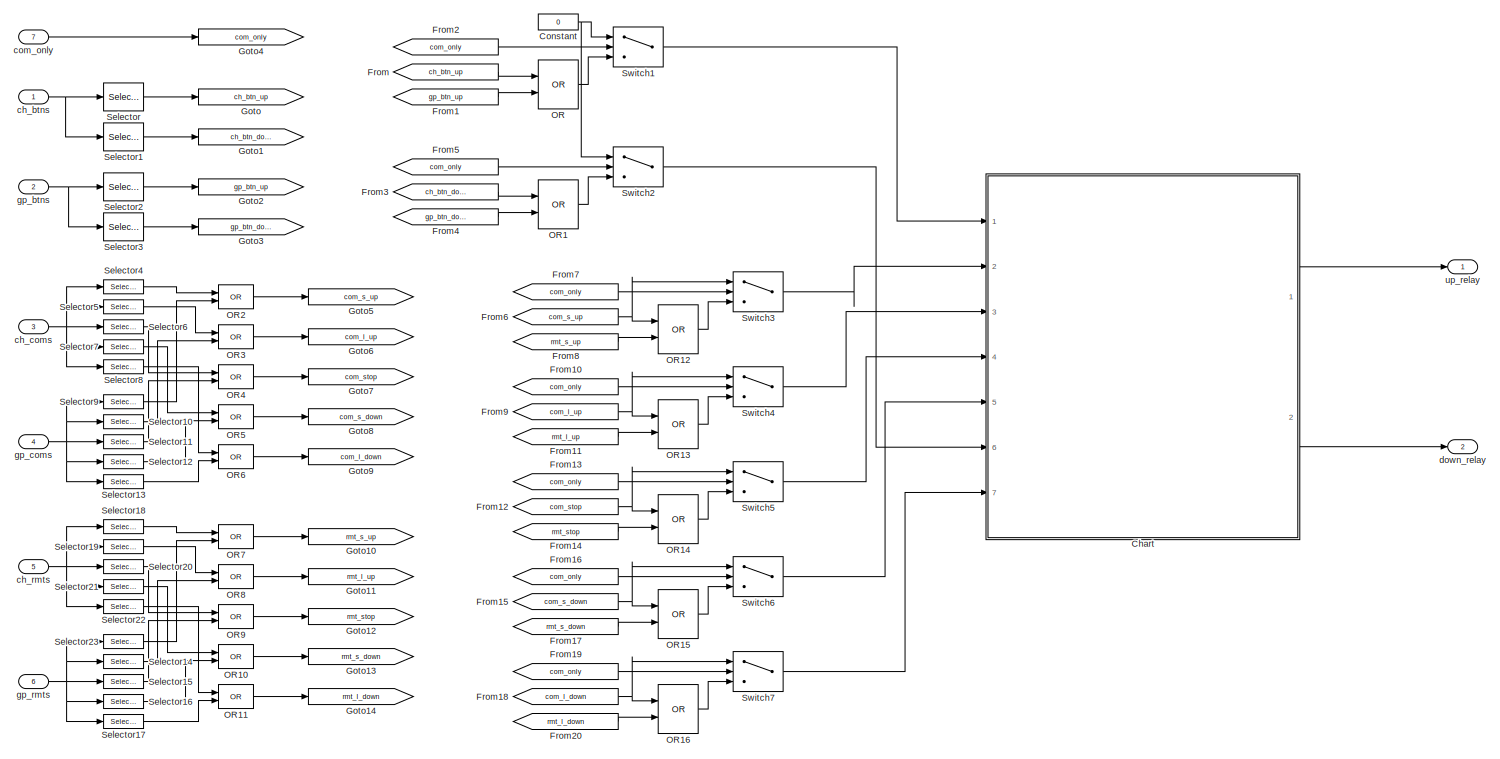
[diagram: root canvas - part 1/1, most of the canvas]
MODEL slx_78d8e8c040b7
KIND model
WORKSPACE source: mxarray member
WORKSPACE debounce_cnt: Simulink.Parameter (value not decoded)
WORKSPACE long_cnt: Simulink.Parameter (value not decoded)
WORKSPACE longpress_cnt: Simulink.Parameter (value not decoded)
WORKSPACE short_cnt: Simulink.Parameter (value not decoded)
WORKSPACE transfer_cnt: Simulink.Parameter (value not decoded)
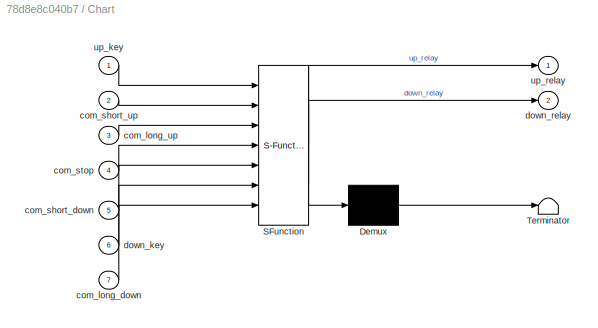
BLOCK [SubSystem] Chart
  ErrorFcn = Stateflow.Translate.translate
  PermitHierarchicalResolution = ExplicitOnly
  PortSchema = {"entries":[{"content":{"sides":[{"content":{"connectorIds":["In1","In6","In2","In3","In4","In5","In7"]},"type":"ConnectorPlacement.EquallySpacedRectSide","uuid":"4c20fa99-1adf-4f22-ae93-c6186f058e35"},{"content":{"connectorIds":["Out1","Out2"],"side":"RIGHT"},"type":"ConnectorPlacement.EquallySpacedRectSide","uuid":"7e4b4d75-813d-4fac-a5e7-b1188569f7b1"},{"content":{"connectorIds":[],"side":"TOP"...<+283ch>
  Ports = [7, 2]
  RequestExecContextInheritance = off
  SFBlockType = Chart
  TreatAsGroupedWhenPropagatingVariantConditions = off
BLOCK [Demux] Chart/ Demux 
  Outputs = 1
  Ports = [1, 1]
BLOCK [S-Function] Chart/ SFunction 
  EnableBusSupport = on
  FunctionName = sf_sfun
  Parameters = debounce_cnt,long_cnt,longpress_cnt,short_cnt,transfer_cnt
  PortCounts = [7 3]
  Ports = [7, 3]
  SFcnIsStateOwnerBlock = off
  SFunctionDeploymentMode = off
  Tag = Stateflow S-Function 3
BLOCK [Terminator] Chart/ Terminator 
BLOCK [Inport] Chart/com_long_down
  Port = 7
BLOCK [Inport] Chart/com_long_up
  Port = 3
BLOCK [Inport] Chart/com_short_down
  Port = 5
BLOCK [Inport] Chart/com_short_up
  Port = 2
BLOCK [Inport] Chart/com_stop
  Port = 4
BLOCK [Inport] Chart/down_key
  Port = 6
BLOCK [Outport] Chart/down_relay
  Port = 2
BLOCK [Inport] Chart/up_key
BLOCK [Outport] Chart/up_relay
BLOCK [Constant] Constant
  OutDataTypeStr = int16
  Value = 0
BLOCK [From] From
  GotoTag = ch_btn_up
BLOCK [From] From1
  GotoTag = gp_btn_up
BLOCK [From] From10
  GotoTag = com_only
BLOCK [From] From11
  GotoTag = rmt_l_up
BLOCK [From] From12
  GotoTag = com_stop
BLOCK [From] From13
  GotoTag = com_only
BLOCK [From] From14
  GotoTag = rmt_stop
BLOCK [From] From15
  GotoTag = com_s_down
BLOCK [From] From16
  GotoTag = com_only
BLOCK [From] From17
  GotoTag = rmt_s_down
BLOCK [From] From18
  GotoTag = com_l_down
BLOCK [From] From19
  GotoTag = com_only
BLOCK [From] From2
  GotoTag = com_only
BLOCK [From] From20
  GotoTag = rmt_l_down
BLOCK [From] From3
  GotoTag = ch_btn_down
BLOCK [From] From4
  GotoTag = gp_btn_down
BLOCK [From] From5
  GotoTag = com_only
BLOCK [From] From6
  GotoTag = com_s_up
BLOCK [From] From7
  GotoTag = com_only
BLOCK [From] From8
  GotoTag = rmt_s_up
BLOCK [From] From9
  GotoTag = com_l_up
BLOCK [Goto] Goto
  GotoTag = ch_btn_up
BLOCK [Goto] Goto1
  GotoTag = ch_btn_down
BLOCK [Goto] Goto10
  GotoTag = rmt_s_up
BLOCK [Goto] Goto11
  GotoTag = rmt_l_up
BLOCK [Goto] Goto12
  GotoTag = rmt_stop
BLOCK [Goto] Goto13
  GotoTag = rmt_s_down
BLOCK [Goto] Goto14
  GotoTag = rmt_l_down
BLOCK [Goto] Goto2
  GotoTag = gp_btn_up
BLOCK [Goto] Goto3
  GotoTag = gp_btn_down
BLOCK [Goto] Goto4
  GotoTag = com_only
BLOCK [Goto] Goto5
  GotoTag = com_s_up
BLOCK [Goto] Goto6
  GotoTag = com_l_up
BLOCK [Goto] Goto7
  GotoTag = com_stop
BLOCK [Goto] Goto8
  GotoTag = com_s_down
BLOCK [Goto] Goto9
  GotoTag = com_l_down
BLOCK [Logic] OR
  AllPortsSameDT = off
  Operator = OR
  Ports = [2, 1]
BLOCK [Logic] OR1
  AllPortsSameDT = off
  Operator = OR
  Ports = [2, 1]
BLOCK [Logic] OR10
  AllPortsSameDT = off
  Operator = OR
  Ports = [2, 1]
BLOCK [Logic] OR11
  AllPortsSameDT = off
  Operator = OR
  Ports = [2, 1]
BLOCK [Logic] OR12
  AllPortsSameDT = off
  Operator = OR
  Ports = [2, 1]
BLOCK [Logic] OR13
  AllPortsSameDT = off
  Operator = OR
  Ports = [2, 1]
BLOCK [Logic] OR14
  AllPortsSameDT = off
  Operator = OR
  Ports = [2, 1]
BLOCK [Logic] OR15
  AllPortsSameDT = off
  Operator = OR
  Ports = [2, 1]
BLOCK [Logic] OR16
  AllPortsSameDT = off
  Operator = OR
  Ports = [2, 1]
BLOCK [Logic] OR2
  AllPortsSameDT = off
  Operator = OR
  Ports = [2, 1]
BLOCK [Logic] OR3
  AllPortsSameDT = off
  Operator = OR
  Ports = [2, 1]
BLOCK [Logic] OR4
  AllPortsSameDT = off
  Operator = OR
  Ports = [2, 1]
BLOCK [Logic] OR5
  AllPortsSameDT = off
  Operator = OR
  Ports = [2, 1]
BLOCK [Logic] OR6
  AllPortsSameDT = off
  Operator = OR
  Ports = [2, 1]
BLOCK [Logic] OR7
  AllPortsSameDT = off
  Operator = OR
  Ports = [2, 1]
BLOCK [Logic] OR8
  AllPortsSameDT = off
  Operator = OR
  Ports = [2, 1]
BLOCK [Logic] OR9
  AllPortsSameDT = off
  Operator = OR
  Ports = [2, 1]
BLOCK [Selector] Selector
  IndexMode = Zero-based
  IndexOptions = Index vector (dialog)
  Indices = [0]
  InputPortWidth = 2
  OutputSizes = 1
  Ports = [1, 1]
BLOCK [Selector] Selector1
  IndexMode = Zero-based
  IndexOptions = Index vector (dialog)
  Indices = [1]
  InputPortWidth = 2
  OutputSizes = 1
  Ports = [1, 1]
BLOCK [Selector] Selector10
  IndexMode = Zero-based
  IndexOptions = Index vector (dialog)
  Indices = [1]
  InputPortWidth = 5
  OutputSizes = 1
  Ports = [1, 1]
BLOCK [Selector] Selector11
  IndexMode = Zero-based
  IndexOptions = Index vector (dialog)
  Indices = [2]
  InputPortWidth = 5
  OutputSizes = 1
  Ports = [1, 1]
BLOCK [Selector] Selector12
  IndexMode = Zero-based
  IndexOptions = Index vector (dialog)
  Indices = [3]
  InputPortWidth = 5
  OutputSizes = 1
  Ports = [1, 1]
BLOCK [Selector] Selector13
  IndexMode = Zero-based
  IndexOptions = Index vector (dialog)
  Indices = [4]
  InputPortWidth = 5
  OutputSizes = 1
  Ports = [1, 1]
BLOCK [Selector] Selector14
  IndexMode = Zero-based
  IndexOptions = Index vector (dialog)
  Indices = [1]
  InputPortWidth = 5
  OutputSizes = 1
  Ports = [1, 1]
BLOCK [Selector] Selector15
  IndexMode = Zero-based
  IndexOptions = Index vector (dialog)
  Indices = [2]
  InputPortWidth = 5
  OutputSizes = 1
  Ports = [1, 1]
BLOCK [Selector] Selector16
  IndexMode = Zero-based
  IndexOptions = Index vector (dialog)
  Indices = [3]
  InputPortWidth = 5
  OutputSizes = 1
  Ports = [1, 1]
BLOCK [Selector] Selector17
  IndexMode = Zero-based
  IndexOptions = Index vector (dialog)
  Indices = [4]
  InputPortWidth = 5
  OutputSizes = 1
  Ports = [1, 1]
BLOCK [Selector] Selector18
  IndexMode = Zero-based
  IndexOptions = Index vector (dialog)
  Indices = [0]
  InputPortWidth = 5
  OutputSizes = 1
  Ports = [1, 1]
BLOCK [Selector] Selector19
  IndexMode = Zero-based
  IndexOptions = Index vector (dialog)
  Indices = [1]
  InputPortWidth = 5
  OutputSizes = 1
  Ports = [1, 1]
BLOCK [Selector] Selector2
  IndexMode = Zero-based
  IndexOptions = Index vector (dialog)
  Indices = [0]
  InputPortWidth = 2
  OutputSizes = 1
  Ports = [1, 1]
BLOCK [Selector] Selector20
  IndexMode = Zero-based
  IndexOptions = Index vector (dialog)
  Indices = [2]
  InputPortWidth = 5
  OutputSizes = 1
  Ports = [1, 1]
BLOCK [Selector] Selector21
  IndexMode = Zero-based
  IndexOptions = Index vector (dialog)
  Indices = [3]
  InputPortWidth = 5
  OutputSizes = 1
  Ports = [1, 1]
BLOCK [Selector] Selector22
  IndexMode = Zero-based
  IndexOptions = Index vector (dialog)
  Indices = [4]
  InputPortWidth = 5
  OutputSizes = 1
  Ports = [1, 1]
BLOCK [Selector] Selector23
  IndexMode = Zero-based
  IndexOptions = Index vector (dialog)
  Indices = [0]
  InputPortWidth = 5
  OutputSizes = 1
  Ports = [1, 1]
BLOCK [Selector] Selector3
  IndexMode = Zero-based
  IndexOptions = Index vector (dialog)
  Indices = [1]
  InputPortWidth = 2
  OutputSizes = 1
  Ports = [1, 1]
BLOCK [Selector] Selector4
  IndexMode = Zero-based
  IndexOptions = Index vector (dialog)
  Indices = [0]
  InputPortWidth = 5
  OutputSizes = 1
  Ports = [1, 1]
BLOCK [Selector] Selector5
  IndexMode = Zero-based
  IndexOptions = Index vector (dialog)
  Indices = [1]
  InputPortWidth = 5
  OutputSizes = 1
  Ports = [1, 1]
BLOCK [Selector] Selector6
  IndexMode = Zero-based
  IndexOptions = Index vector (dialog)
  Indices = [2]
  InputPortWidth = 5
  OutputSizes = 1
  Ports = [1, 1]
BLOCK [Selector] Selector7
  IndexMode = Zero-based
  IndexOptions = Index vector (dialog)
  Indices = [3]
  InputPortWidth = 5
  OutputSizes = 1
  Ports = [1, 1]
BLOCK [Selector] Selector8
  IndexMode = Zero-based
  IndexOptions = Index vector (dialog)
  Indices = [4]
  InputPortWidth = 5
  OutputSizes = 1
  Ports = [1, 1]
BLOCK [Selector] Selector9
  IndexMode = Zero-based
  IndexOptions = Index vector (dialog)
  Indices = [0]
  InputPortWidth = 5
  OutputSizes = 1
  Ports = [1, 1]
BLOCK [Switch] Switch1
  Criteria = u2 ~= 0
  InputSameDT = off
  SaturateOnIntegerOverflow = off
BLOCK [Switch] Switch2
  Criteria = u2 ~= 0
  InputSameDT = off
  SaturateOnIntegerOverflow = off
BLOCK [Switch] Switch3
  Criteria = u2 ~= 0
  InputSameDT = off
  SaturateOnIntegerOverflow = off
BLOCK [Switch] Switch4
  Criteria = u2 ~= 0
  InputSameDT = off
  SaturateOnIntegerOverflow = off
BLOCK [Switch] Switch5
  Criteria = u2 ~= 0
  InputSameDT = off
  SaturateOnIntegerOverflow = off
BLOCK [Switch] Switch6
  Criteria = u2 ~= 0
  InputSameDT = off
  SaturateOnIntegerOverflow = off
BLOCK [Switch] Switch7
  Criteria = u2 ~= 0
  InputSameDT = off
  SaturateOnIntegerOverflow = off
BLOCK [Inport] ch_btns
  OutDataTypeStr = int16
  OutMax = 1
  OutMin = 0
  PortDimensions = 2
  SignalType = real
BLOCK [Inport] ch_coms
  OutDataTypeStr = int16
  OutMax = 1
  OutMin = 0
  Port = 3
  PortDimensions = 5
  SignalType = real
BLOCK [Inport] ch_rmts
  OutDataTypeStr = int16
  OutMax = 1
  OutMin = 0
  Port = 5
  PortDimensions = 5
  SignalType = real
BLOCK [Inport] com_only
  OutDataTypeStr = int16
  OutMax = 1
  OutMin = 0
  Port = 7
  PortDimensions = 1
  SignalType = real
BLOCK [Outport] down_relay
  OutDataTypeStr = int16
  OutMax = 1
  OutMin = 0
  Port = 2
  PortDimensions = 1
  SignalType = real
BLOCK [Inport] gp_btns
  OutDataTypeStr = int16
  OutMax = 1
  OutMin = 0
  Port = 2
  PortDimensions = 2
  SignalType = real
BLOCK [Inport] gp_coms
  OutDataTypeStr = int16
  OutMax = 1
  OutMin = 0
  Port = 4
  PortDimensions = 5
  SignalType = real
BLOCK [Inport] gp_rmts
  OutDataTypeStr = int16
  OutMax = 1
  OutMin = 0
  Port = 6
  PortDimensions = 5
  SignalType = real
BLOCK [Outport] up_relay
  OutDataTypeStr = int16
  OutMax = 1
  OutMin = 0
  PortDimensions = 1
  SignalType = real
LINE Chart:1 -> up_relay:1
LINE Chart:2 -> down_relay:1
NET Constant:1 -> Switch1:1, Switch2:1
LINE From10:1 -> Switch4:2
LINE From11:1 -> OR13:2
NET From12:1 -> OR14:1, Switch5:1
LINE From13:1 -> Switch5:2
LINE From14:1 -> OR14:2
NET From15:1 -> OR15:1, Switch6:1
LINE From16:1 -> Switch6:2
LINE From17:1 -> OR15:2
NET From18:1 -> OR16:1, Switch7:1
LINE From19:1 -> Switch7:2
LINE From1:1 -> OR:2
LINE From20:1 -> OR16:2
LINE From2:1 -> Switch1:2
LINE From3:1 -> OR1:1
LINE From4:1 -> OR1:2
LINE From5:1 -> Switch2:2
NET From6:1 -> OR12:1, Switch3:1
LINE From7:1 -> Switch3:2
LINE From8:1 -> OR12:2
NET From9:1 -> OR13:1, Switch4:1
LINE From:1 -> OR:1
LINE OR10:1 -> Goto13:1
LINE OR11:1 -> Goto14:1
LINE OR12:1 -> Switch3:3
LINE OR13:1 -> Switch4:3
LINE OR14:1 -> Switch5:3
LINE OR15:1 -> Switch6:3
LINE OR16:1 -> Switch7:3
LINE OR1:1 -> Switch2:3
LINE OR2:1 -> Goto5:1
LINE OR3:1 -> Goto6:1
LINE OR4:1 -> Goto7:1
LINE OR5:1 -> Goto8:1
LINE OR6:1 -> Goto9:1
LINE OR7:1 -> Goto10:1
LINE OR8:1 -> Goto11:1
LINE OR9:1 -> Goto12:1
LINE OR:1 -> Switch1:3
LINE Selector10:1 -> OR3:2
LINE Selector11:1 -> OR4:2
LINE Selector12:1 -> OR5:2
LINE Selector13:1 -> OR6:2
LINE Selector14:1 -> OR8:2
LINE Selector15:1 -> OR9:2
LINE Selector16:1 -> OR10:2
LINE Selector17:1 -> OR11:2
LINE Selector18:1 -> OR7:1
LINE Selector19:1 -> OR8:1
LINE Selector1:1 -> Goto1:1
LINE Selector20:1 -> OR9:1
LINE Selector21:1 -> OR10:1
LINE Selector22:1 -> OR11:1
LINE Selector23:1 -> OR7:2
LINE Selector2:1 -> Goto2:1
LINE Selector3:1 -> Goto3:1
LINE Selector4:1 -> OR2:1
LINE Selector5:1 -> OR3:1
LINE Selector6:1 -> OR4:1
LINE Selector7:1 -> OR5:1
LINE Selector8:1 -> OR6:1
LINE Selector9:1 -> OR2:2
LINE Selector:1 -> Goto:1
LINE Switch1:1 -> Chart:1
LINE Switch2:1 -> Chart:6
LINE Switch3:1 -> Chart:2
LINE Switch4:1 -> Chart:3
LINE Switch5:1 -> Chart:4
LINE Switch6:1 -> Chart:5
LINE Switch7:1 -> Chart:7
NET ch_btns:1 -> Selector1:1, Selector:1
NET ch_coms:1 -> Selector4:1, Selector5:1, Selector6:1, Selector7:1, Selector8:1
NET ch_rmts:1 -> Selector18:1, Selector19:1, Selector20:1, Selector21:1, Selector22:1
LINE com_only:1 -> Goto4:1
NET gp_btns:1 -> Selector2:1, Selector3:1
NET gp_coms:1 -> Selector10:1, Selector11:1, Selector12:1, Selector13:1, Selector9:1
NET gp_rmts:1 -> Selector14:1, Selector15:1, Selector16:1, Selector17:1, Selector23:1
note: NET lines group one-source signal fan-out (src -> all destinations, sorted); 1:1 wires keep LINE
CHART Chart states=26 transitions=40
  STATE_LABEL 'MOTOR_CTRL'
  STATE_LABEL 'COM_CMD'
  STATE_LABEL 'SHORT_DOWN\nen: send(short_down_event,MOTOR)'
  STATE_LABEL 'IDLE'
  STATE_LABEL 'SHORT_UP\nen: send(short_up_event,MOTOR)'
  STATE_LABEL 'LONG_DOWN\nen: send(long_down_event,MOTOR)'
  STATE_LABEL 'LONG_UP\nen: send(long_up_event,MOTOR)'
  STATE_LABEL 'STOP\nen: send(stop_event,MOTOR)'
  STATE_LABEL '[com_short_up==1]'
  STATE_LABEL '[com_short_down==1]'
  STATE_LABEL '[after(short_cnt,tick)]'
  STATE_LABEL '[after(short_cnt,tick)]'
  STATE_LABEL '[com_long_down==1]'
  STATE_LABEL '[after(short_cnt,tick)]'
  STATE_LABEL '[com_stop==1]'
  STATE_LABEL '[after(short_cnt,tick)]'
  STATE_LABEL '[after(short_cnt,tick)]'
  STATE_LABEL '[com_long_up==1]'
  STATE_LABEL 'KEY_CMD'
  STATE_LABEL 'DOWN_KEY_PRESSED'
  STATE_LABEL 'DOWN_CLICK'
  STATE_LABEL 'DOWN_DEBOUNCE'
  STATE_LABEL 'DOWN_LONGPRESS\nen: send(down_key_long_press,MOTOR)'
  STATE_LABEL '[after(debounce_cnt,tick)]'
  STATE_LABEL '[after(longpress_cnt,tick)]'
  STATE_LABEL 'IDLE'
  STATE_LABEL 'UP_KEY_PRESSED'
  STATE_LABEL 'UP_DEBOUNCE'
  STATE_LABEL 'UP_CLICK'
  STATE_LABEL 'UP_LONGPRESS\nen: send(up_key_long_press,MOTOR)'
  STATE_LABEL '[after(debounce_cnt,tick)]'
  STATE_LABEL '[after(longpress_cnt,tick)]'
  STATE_LABEL '[up_key==1]'
  STATE_LABEL '[down_key==1]'
  STATE_LABEL '[up_key~=1]'
  STATE_LABEL '[down_key~=1]'
  STATE_LABEL '[up_key~=1]{send(up_key_click,MOTOR)}'
  STATE_LABEL '[down_key~=1]{send(down_key_click, MOTOR)}'
  STATE_LABEL '[up_key~=1]'
  STATE_LABEL '[down_key~=1]'
CHART  states=0 transitions=0
